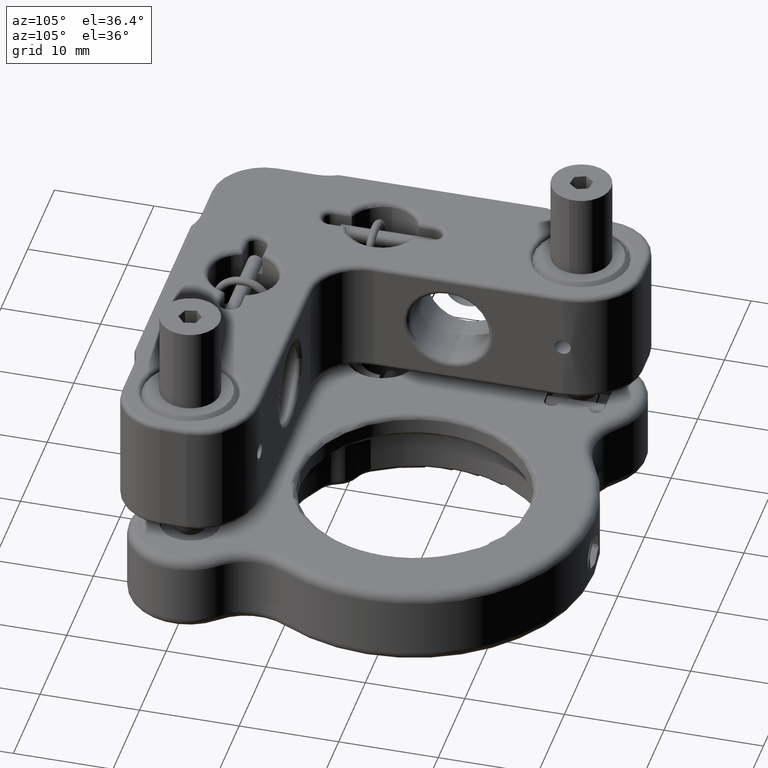
[diagram: clean part render]
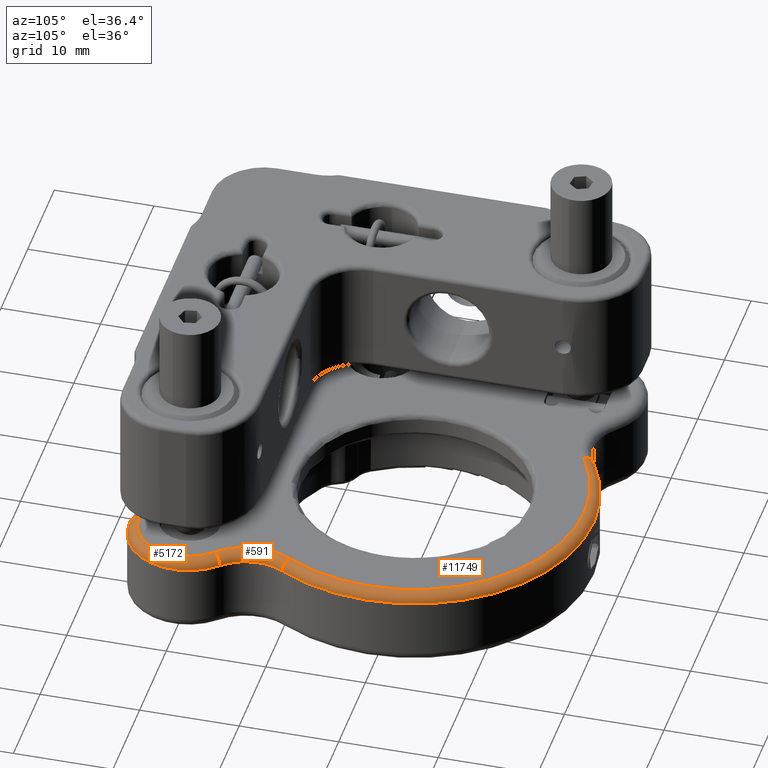
[diagram: same view with one multi-face feature highlighted, each face labeled with its STEP entity id]
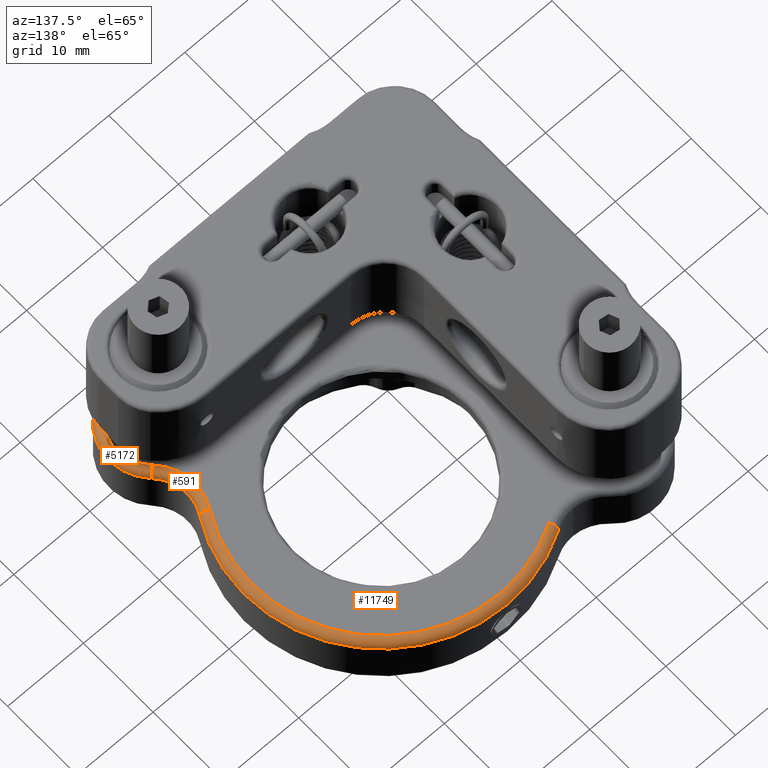
[diagram: same view with one multi-face feature highlighted, each face labeled with its STEP entity id]
A machine part, auxiliary view. The highlighted faces form ONE feature: a constant-radius fillet chain: 3 tangent blend faces with common blend radius 1 mm. The faces share edges in the B-rep.
A second angle (auxiliary view) of the same feature is appended — it is thin or edge-on in the first view.
Their STEP definitions:
[1] entity #5172 (Torus):
#620 = CARTESIAN_POINT ( 'NONE',  ( 31.49999999999995700, -5.000000000000071900, -10.00000000000000900 ) ) ;
#1077 = DIRECTION ( 'NONE',  ( 0.0000000000000000000, -2.775557561562892000E-017, -1.000000000000000000 ) ) ;
#1577 = CARTESIAN_POINT ( 'NONE',  ( 35.74629777204158600, 4.238980447130401800, -11.00000000000000700 ) ) ;
#2934 = DIRECTION ( 'NONE',  ( 0.0000000000000000000, -2.775557561562892000E-017, -1.000000000000000000 ) ) ;
#3184 = AXIS2_PLACEMENT_3D ( 'NONE', #19507, #9329, #21218 ) ;
#3644 = TOROIDAL_SURFACE ( 'NONE', #12508, 5.000000000000004400, 1.000000000000000000 ) ;
#4025 = VERTEX_POINT ( 'NONE', #12147 ) ;
#4926 = EDGE_LOOP ( 'NONE', ( #5703, #21934, #19866, #17968 ) ) ;
#5149 = DIRECTION ( 'NONE',  ( -0.0000000000000000000, 2.775557561562892000E-017, 1.000000000000000000 ) ) ;
#5172 = ADVANCED_FACE ( 'NONE', ( #5237 ), #3644, .T. ) ;
#5237 = FACE_OUTER_BOUND ( 'NONE', #4926, .T. ) ;
#5703 = ORIENTED_EDGE ( 'NONE', *, *, #11990, .F. ) ;
#5837 = EDGE_CURVE ( 'NONE', #17165, #11017, #8603, .T. ) ;
#7349 = EDGE_CURVE ( 'NONE', #17165, #4025, #17059, .T. ) ;
#7895 = VERTEX_POINT ( 'NONE', #620 ) ;
#8603 = CIRCLE ( 'NONE', #20525, 6.000000000000004400 ) ;
#9329 = DIRECTION ( 'NONE',  ( 1.000000000000000000, -2.310651670001107000E-015, 6.413346714809496500E-032 ) ) ;
#10021 = DIRECTION ( 'NONE',  ( 0.7064967411884145500, -0.7077162953402658100, 8.546095999837439100E-015 ) ) ;
#10659 = CIRCLE ( 'NONE', #12888, 5.000000000000004400 ) ;
#11017 = VERTEX_POINT ( 'NONE', #15128 ) ;
#11215 = CARTESIAN_POINT ( 'NONE',  ( 31.49999999999997200, -6.765421556309547700E-014, -11.00000000000000700 ) ) ;
#11990 = EDGE_CURVE ( 'NONE', #7895, #4025, #10659, .T. ) ;
#12147 = CARTESIAN_POINT ( 'NONE',  ( 35.03858147670131700, 3.532483705941993300, -10.00000000000000700 ) ) ;
#12508 = AXIS2_PLACEMENT_3D ( 'NONE', #18111, #2934, #14800 ) ;
#12888 = AXIS2_PLACEMENT_3D ( 'NONE', #15344, #5149, #17026 ) ;
#12958 = DIRECTION ( 'NONE',  ( -2.312964634635741100E-015, -1.000000000000000000, 0.0000000000000000000 ) ) ;
#14800 = DIRECTION ( 'NONE',  ( -2.312964634635741100E-015, -1.000000000000000000, 2.775557561562892000E-017 ) ) ;
#15128 = CARTESIAN_POINT ( 'NONE',  ( 31.49999999999995700, -6.000000000000071900, -11.00000000000000700 ) ) ;
#15344 = CARTESIAN_POINT ( 'NONE',  ( 31.49999999999997200, -6.765421556309547700E-014, -10.00000000000000900 ) ) ;
#15446 = EDGE_CURVE ( 'NONE', #7895, #11017, #18278, .T. ) ;
#16742 = AXIS2_PLACEMENT_3D ( 'NONE', #20189, #10021, #21880 ) ;
#17026 = DIRECTION ( 'NONE',  ( -1.387778780781444500E-015, -1.000000000000000000, 0.0000000000000000000 ) ) ;
#17059 = CIRCLE ( 'NONE', #16742, 0.9999999999999981100 ) ;
#17165 = VERTEX_POINT ( 'NONE', #1577 ) ;
#17968 = ORIENTED_EDGE ( 'NONE', *, *, #7349, .T. ) ;
#18111 = CARTESIAN_POINT ( 'NONE',  ( 31.49999999999997200, -6.765421556309547700E-014, -11.00000000000000700 ) ) ;
#18278 = CIRCLE ( 'NONE', #3184, 1.000000000000000000 ) ;
#19507 = CARTESIAN_POINT ( 'NONE',  ( 31.49999999999995700, -5.000000000000071900, -11.00000000000000700 ) ) ;
#19866 = ORIENTED_EDGE ( 'NONE', *, *, #5837, .F. ) ;
#20189 = CARTESIAN_POINT ( 'NONE',  ( 35.03858147670132400, 3.532483705941988500, -11.00000000000000700 ) ) ;
#20525 = AXIS2_PLACEMENT_3D ( 'NONE', #11215, #1077, #12958 ) ;
#21218 = DIRECTION ( 'NONE',  ( 0.0000000000000000000, 1.000000000000000000, 0.0000000000000000000 ) ) ;
#21880 = DIRECTION ( 'NONE',  ( 0.7077162953402645900, 0.7064967411884158800, 0.0000000000000000000 ) ) ;
#21934 = ORIENTED_EDGE ( 'NONE', *, *, #15446, .T. ) ;
[2] entity #591 (Torus):
#128 = ORIENTED_EDGE ( 'NONE', *, *, #7349, .F. ) ;
#591 = ADVANCED_FACE ( 'NONE', ( #1407 ), #13367, .T. ) ;
#1407 = FACE_OUTER_BOUND ( 'NONE', #4810, .T. ) ;
#1577 = CARTESIAN_POINT ( 'NONE',  ( 35.74629777204158600, 4.238980447130401800, -11.00000000000000700 ) ) ;
#1638 = ORIENTED_EDGE ( 'NONE', *, *, #4078, .F. ) ;
#1960 = CIRCLE ( 'NONE', #15087, 1.000000000000000000 ) ;
#2185 = DIRECTION ( 'NONE',  ( -0.0000000000000000000, 2.775557561562892000E-017, 1.000000000000000000 ) ) ;
#3244 = ORIENTED_EDGE ( 'NONE', *, *, #14847, .F. ) ;
#4025 = VERTEX_POINT ( 'NONE', #12147 ) ;
#4078 = EDGE_CURVE ( 'NONE', #21408, #17172, #1960, .T. ) ;
#4780 = CIRCLE ( 'NONE', #5553, 6.000000000000000900 ) ;
#4810 = EDGE_LOOP ( 'NONE', ( #128, #21022, #1638, #3244 ) ) ;
#5553 = AXIS2_PLACEMENT_3D ( 'NONE', #19841, #9655, #21532 ) ;
#5914 = DIRECTION ( 'NONE',  ( 0.0000000000000000000, -2.775557561562892000E-017, -1.000000000000000000 ) ) ;
#7349 = EDGE_CURVE ( 'NONE', #17165, #4025, #17059, .T. ) ;
#8125 = CARTESIAN_POINT ( 'NONE',  ( 39.28487924874293200, 7.771464153072468400, -11.00000000000000700 ) ) ;
#9061 = DIRECTION ( 'NONE',  ( 0.5099363411707597000, 0.8602121412496912500, 4.775136626387579200E-017 ) ) ;
#9655 = DIRECTION ( 'NONE',  ( 0.0000000000000000000, -2.775557561562892000E-017, -1.000000000000000000 ) ) ;
#10021 = DIRECTION ( 'NONE',  ( 0.7064967411884145500, -0.7077162953402658100, 8.546095999837439100E-015 ) ) ;
#12147 = CARTESIAN_POINT ( 'NONE',  ( 35.03858147670131700, 3.532483705941993300, -10.00000000000000700 ) ) ;
#12333 = CARTESIAN_POINT ( 'NONE',  ( 39.28487924874293200, 7.771464153072468400, -11.00000000000000700 ) ) ;
#13367 = TOROIDAL_SURFACE ( 'NONE', #16699, 6.000000000000000900, 1.000000000000000000 ) ;
#14055 = DIRECTION ( 'NONE',  ( 0.0000000000000000000, -1.000000000000000000, 0.0000000000000000000 ) ) ;
#14451 = EDGE_CURVE ( 'NONE', #17172, #17165, #16361, .T. ) ;
#14847 = EDGE_CURVE ( 'NONE', #4025, #21408, #4780, .T. ) ;
#15087 = AXIS2_PLACEMENT_3D ( 'NONE', #19236, #9061, #20950 ) ;
#15148 = CARTESIAN_POINT ( 'NONE',  ( 34.98381854249446800, 10.32114585892626700, -11.00000000000000700 ) ) ;
#16361 = CIRCLE ( 'NONE', #21613, 5.000000000000000900 ) ;
#16699 = AXIS2_PLACEMENT_3D ( 'NONE', #8125, #5914, #17781 ) ;
#16742 = AXIS2_PLACEMENT_3D ( 'NONE', #20189, #10021, #21880 ) ;
#17059 = CIRCLE ( 'NONE', #16742, 0.9999999999999981100 ) ;
#17165 = VERTEX_POINT ( 'NONE', #1577 ) ;
#17172 = VERTEX_POINT ( 'NONE', #15148 ) ;
#17781 = DIRECTION ( 'NONE',  ( -1.982541115402064900E-015, -1.000000000000000000, 2.775557561562892000E-017 ) ) ;
#19236 = CARTESIAN_POINT ( 'NONE',  ( 34.12360640124477800, 10.83108220009702700, -11.00000000000000700 ) ) ;
#19841 = CARTESIAN_POINT ( 'NONE',  ( 39.28487924874293200, 7.771464153072468400, -10.00000000000000700 ) ) ;
#20189 = CARTESIAN_POINT ( 'NONE',  ( 35.03858147670132400, 3.532483705941988500, -11.00000000000000700 ) ) ;
#20250 = CARTESIAN_POINT ( 'NONE',  ( 34.12360640124477800, 10.83108220009703100, -10.00000000000000700 ) ) ;
#20950 = DIRECTION ( 'NONE',  ( -0.8602121412496915900, 0.5099363411707590300, 0.0000000000000000000 ) ) ;
#21022 = ORIENTED_EDGE ( 'NONE', *, *, #14451, .F. ) ;
#21408 = VERTEX_POINT ( 'NONE', #20250 ) ;
#21532 = DIRECTION ( 'NONE',  ( -2.312964634635742300E-015, -1.000000000000000000, 0.0000000000000000000 ) ) ;
#21613 = AXIS2_PLACEMENT_3D ( 'NONE', #12333, #2185, #14055 ) ;
#21880 = DIRECTION ( 'NONE',  ( 0.7077162953402645900, 0.7064967411884158800, 0.0000000000000000000 ) ) ;
[3] entity #11749 (Torus):
#765 = DIRECTION ( 'NONE',  ( 0.5099363411707564800, -0.8602121412496931400, 0.0000000000000000000 ) ) ;
#1932 = AXIS2_PLACEMENT_3D ( 'NONE', #9529, #6220, #18079 ) ;
#1960 = CIRCLE ( 'NONE', #15087, 1.000000000000000000 ) ;
#3890 = DIRECTION ( 'NONE',  ( -0.0000000000000000000, 2.775557561562892000E-017, 1.000000000000000000 ) ) ;
#4078 = EDGE_CURVE ( 'NONE', #21408, #17172, #1960, .T. ) ;
#5003 = CARTESIAN_POINT ( 'NONE',  ( 19.50000000000002500, 19.49999999999992500, -11.00000000000000700 ) ) ;
#5257 = VERTEX_POINT ( 'NONE', #18275 ) ;
#5576 = EDGE_CURVE ( 'NONE', #11697, #17172, #8898, .T. ) ;
#6220 = DIRECTION ( 'NONE',  ( 0.0000000000000000000, -2.775557561562892000E-017, -1.000000000000000000 ) ) ;
#6712 = DIRECTION ( 'NONE',  ( -2.312964634635742700E-015, -1.000000000000000000, -9.637352644315595200E-017 ) ) ;
#8898 = CIRCLE ( 'NONE', #18802, 18.00000000000000000 ) ;
#9061 = DIRECTION ( 'NONE',  ( 0.5099363411707597000, 0.8602121412496912500, 4.775136626387579200E-017 ) ) ;
#9375 = CARTESIAN_POINT ( 'NONE',  ( 10.32114585892644100, 34.98381854249442600, -11.00000000000000700 ) ) ;
#9529 = CARTESIAN_POINT ( 'NONE',  ( 19.50000000000002500, 19.49999999999992500, -11.00000000000000700 ) ) ;
#10534 = ORIENTED_EDGE ( 'NONE', *, *, #16123, .F. ) ;
#10676 = TOROIDAL_SURFACE ( 'NONE', #1932, 16.99999999999999600, 1.000000000000000000 ) ;
#10910 = DIRECTION ( 'NONE',  ( -0.8602121412496934700, -0.5099363411707558100, -2.830715335304422400E-017 ) ) ;
#11697 = VERTEX_POINT ( 'NONE', #9375 ) ;
#11749 = ADVANCED_FACE ( 'NONE', ( #20761 ), #10676, .T. ) ;
#14061 = CARTESIAN_POINT ( 'NONE',  ( 19.50000000000002500, 19.49999999999992500, -10.00000000000000500 ) ) ;
#14839 = CIRCLE ( 'NONE', #15588, 0.9999999999999982200 ) ;
#15087 = AXIS2_PLACEMENT_3D ( 'NONE', #19236, #9061, #20950 ) ;
#15148 = CARTESIAN_POINT ( 'NONE',  ( 34.98381854249446800, 10.32114585892626700, -11.00000000000000700 ) ) ;
#15588 = AXIS2_PLACEMENT_3D ( 'NONE', #21081, #10910, #765 ) ;
#15749 = DIRECTION ( 'NONE',  ( -2.244936263028809800E-015, -1.000000000000000000, -1.020425574104004400E-016 ) ) ;
#16123 = EDGE_CURVE ( 'NONE', #21408, #5257, #21108, .T. ) ;
#16877 = DIRECTION ( 'NONE',  ( 0.0000000000000000000, -2.775557561562892000E-017, -1.000000000000000000 ) ) ;
#17172 = VERTEX_POINT ( 'NONE', #15148 ) ;
#17283 = ORIENTED_EDGE ( 'NONE', *, *, #20087, .F. ) ;
#18079 = DIRECTION ( 'NONE',  ( -2.312964634635743100E-015, -1.000000000000000000, 2.775557561562892000E-017 ) ) ;
#18275 = CARTESIAN_POINT ( 'NONE',  ( 10.83108220009720100, 34.12360640124473600, -10.00000000000000500 ) ) ;
#18733 = ORIENTED_EDGE ( 'NONE', *, *, #5576, .F. ) ;
#18802 = AXIS2_PLACEMENT_3D ( 'NONE', #5003, #16877, #6712 ) ;
#19236 = CARTESIAN_POINT ( 'NONE',  ( 34.12360640124477800, 10.83108220009702700, -11.00000000000000700 ) ) ;
#19661 = AXIS2_PLACEMENT_3D ( 'NONE', #14061, #3890, #15749 ) ;
#20087 = EDGE_CURVE ( 'NONE', #5257, #11697, #14839, .T. ) ;
#20250 = CARTESIAN_POINT ( 'NONE',  ( 34.12360640124477800, 10.83108220009703100, -10.00000000000000700 ) ) ;
#20761 = FACE_OUTER_BOUND ( 'NONE', #21460, .T. ) ;
#20950 = DIRECTION ( 'NONE',  ( -0.8602121412496915900, 0.5099363411707590300, 0.0000000000000000000 ) ) ;
#21081 = CARTESIAN_POINT ( 'NONE',  ( 10.83108220009719800, 34.12360640124473600, -11.00000000000000700 ) ) ;
#21108 = CIRCLE ( 'NONE', #19661, 16.99999999999999600 ) ;
#21408 = VERTEX_POINT ( 'NONE', #20250 ) ;
#21412 = ORIENTED_EDGE ( 'NONE', *, *, #4078, .T. ) ;
#21460 = EDGE_LOOP ( 'NONE', ( #21412, #18733, #17283, #10534 ) ) ;